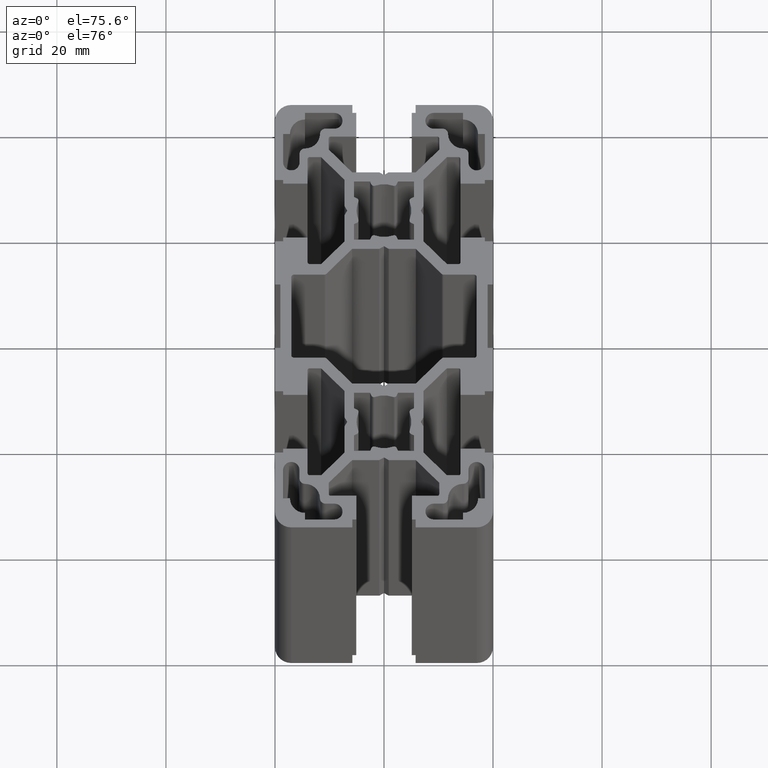
[diagram: clean part render]
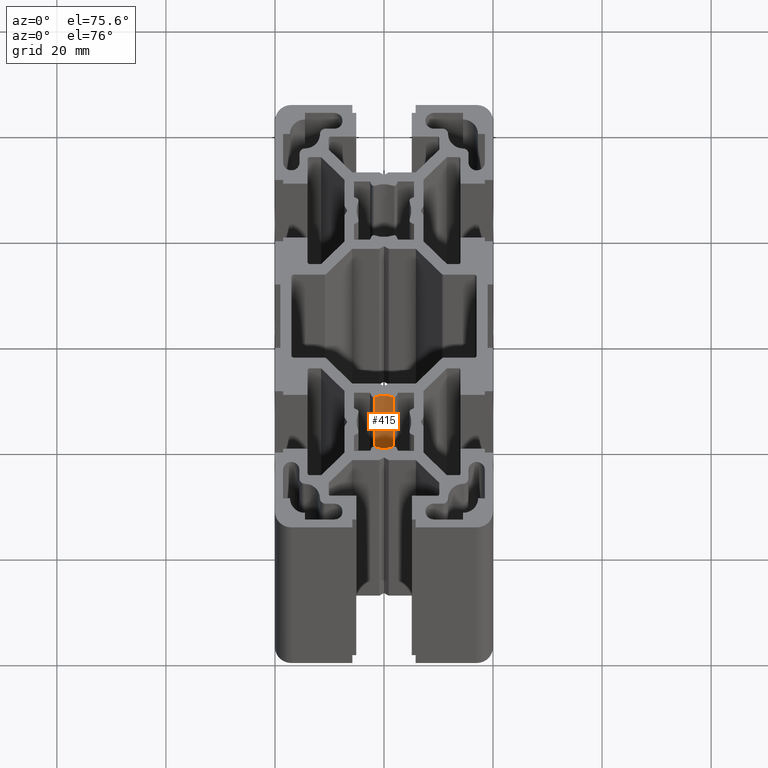
[diagram: same view with one face highlighted and labeled with its STEP entity id]
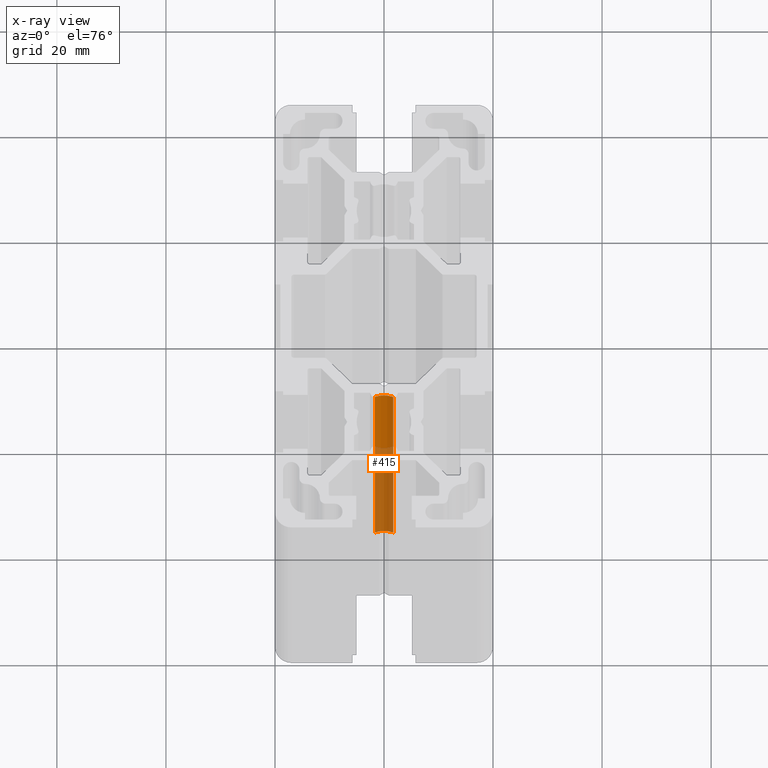
[diagram: x-ray of the same camera — body ghosted, the highlighted face saturated]
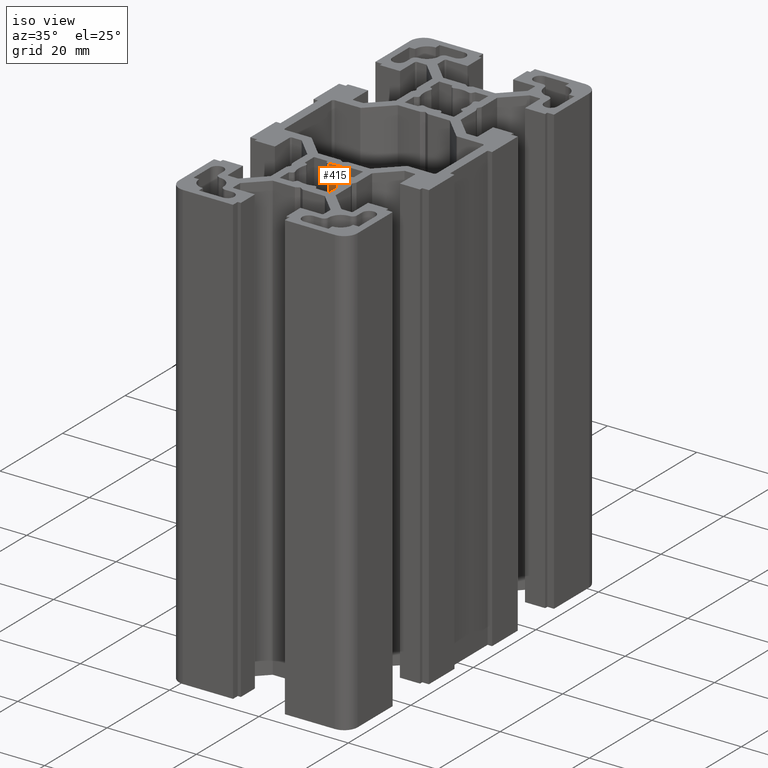
[diagram: same view with one face highlighted and labeled with its STEP entity id]
A machine part, auxiliary view. The second image highlights one B-rep face of the part: STEP entity #415.
The next image is the same camera in x-ray: the body ghosted, the highlighted face saturated — about 62% of this face is hidden behind the body in this view.
A second angle (iso view) of the same face is appended — the face is thin or edge-on in the first view.
In plain terms, the highlighted cylindrical surface (edge-blend (fillet) strip) has radius 5 mm, axis along (-0, -0, -1).
Its self-contained STEP definition (entity closure, byte-faithful):
#373 = ORIENTED_EDGE ( 'NONE', *, *, #433, .F. ) ;
#414 = EDGE_CURVE ( 'NONE', #898, #1268, #3834, .T. ) ;
#415 = ADVANCED_FACE ( 'NONE', ( #3886 ), #3835, .F. ) ;
#417 = ORIENTED_EDGE ( 'NONE', *, *, #1279, .F. ) ;
#419 = ORIENTED_EDGE ( 'NONE', *, *, #989, .T. ) ;
#425 = EDGE_LOOP ( 'NONE', ( #417, #373, #419, #432 ) ) ;
#432 = ORIENTED_EDGE ( 'NONE', *, *, #414, .T. ) ;
#433 = EDGE_CURVE ( 'NONE', #896, #1270, #3905, .T. ) ;
#896 = VERTEX_POINT ( 'NONE', #4608 ) ;
#898 = VERTEX_POINT ( 'NONE', #4620 ) ;
#989 = EDGE_CURVE ( 'NONE', #896, #898, #4764, .T. ) ;
#1268 = VERTEX_POINT ( 'NONE', #5317 ) ;
#1270 = VERTEX_POINT ( 'NONE', #5307 ) ;
#1279 = EDGE_CURVE ( 'NONE', #1270, #1268, #5348, .T. ) ;
#3811 = CARTESIAN_POINT ( 'NONE',  ( 1.014211564124428700E-005, -19.99999999999743500, 100.0000000000000000 ) ) ;
#3834 = LINE ( 'NONE', #3877, #3876 ) ;
#3835 = CYLINDRICAL_SURFACE ( 'NONE', #3850, 5.000000000000004400 ) ;
#3850 = AXIS2_PLACEMENT_3D ( 'NONE', #3811, #3890, #3874 ) ;
#3874 = DIRECTION ( 'NONE',  ( -1.000000000000000000, 0.0000000000000000000, 0.0000000000000000000 ) ) ;
#3875 = DIRECTION ( 'NONE',  ( -0.0000000000000000000, -0.0000000000000000000, -1.000000000000000000 ) ) ;
#3876 = VECTOR ( 'NONE', #3875, 1000.000000000000000 ) ;
#3877 = CARTESIAN_POINT ( 'NONE',  ( -1.692375263845307100, -15.29512682023048100, 100.0000000000000000 ) ) ;
#3886 = FACE_OUTER_BOUND ( 'NONE', #425, .T. ) ;
#3890 = DIRECTION ( 'NONE',  ( -0.0000000000000000000, -0.0000000000000000000, -1.000000000000000000 ) ) ;
#3898 = DIRECTION ( 'NONE',  ( -0.0000000000000000000, -0.0000000000000000000, -1.000000000000000000 ) ) ;
#3899 = VECTOR ( 'NONE', #3898, 1000.000000000000000 ) ;
#3904 = CARTESIAN_POINT ( 'NONE',  ( 1.692390776338931600, -15.29512510379604800, 100.0000000000000000 ) ) ;
#3905 = LINE ( 'NONE', #3904, #3899 ) ;
#4608 = CARTESIAN_POINT ( 'NONE',  ( 1.692390776338931600, -15.29512510379604800, 100.0000000000000000 ) ) ;
#4620 = CARTESIAN_POINT ( 'NONE',  ( -1.692375263845307100, -15.29512682023048100, 100.0000000000000000 ) ) ;
#4756 = AXIS2_PLACEMENT_3D ( 'NONE', #4802, #4801, #4800 ) ;
#4764 = CIRCLE ( 'NONE', #4756, 5.000000000000004400 ) ;
#4800 = DIRECTION ( 'NONE',  ( 1.000000000000000000, 0.0000000000000000000, 0.0000000000000000000 ) ) ;
#4801 = DIRECTION ( 'NONE',  ( 0.0000000000000000000, 0.0000000000000000000, 1.000000000000000000 ) ) ;
#4802 = CARTESIAN_POINT ( 'NONE',  ( 1.014211564124428700E-005, -19.99999999999743500, 100.0000000000000000 ) ) ;
#5294 = AXIS2_PLACEMENT_3D ( 'NONE', #5336, #5335, #5334 ) ;
#5307 = CARTESIAN_POINT ( 'NONE',  ( 1.692390776338931600, -15.29512510379604800, 0.0000000000000000000 ) ) ;
#5317 = CARTESIAN_POINT ( 'NONE',  ( -1.692375263845307100, -15.29512682023048100, 0.0000000000000000000 ) ) ;
#5334 = DIRECTION ( 'NONE',  ( 1.000000000000000000, 0.0000000000000000000, 0.0000000000000000000 ) ) ;
#5335 = DIRECTION ( 'NONE',  ( 0.0000000000000000000, 0.0000000000000000000, 1.000000000000000000 ) ) ;
#5336 = CARTESIAN_POINT ( 'NONE',  ( 1.014211564124428700E-005, -19.99999999999743500, 0.0000000000000000000 ) ) ;
#5348 = CIRCLE ( 'NONE', #5294, 5.000000000000004400 ) ;